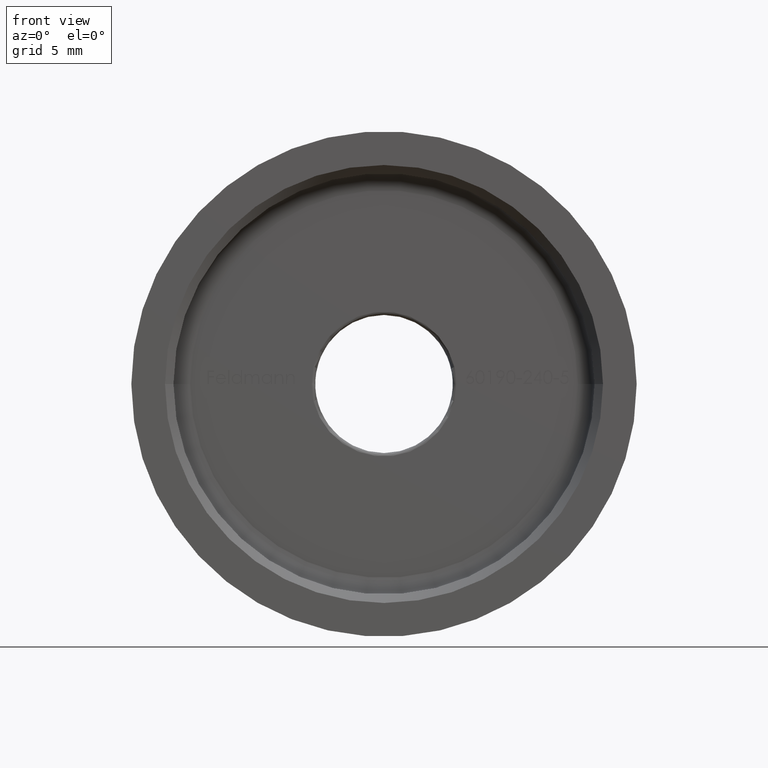
[diagram: clean part render]
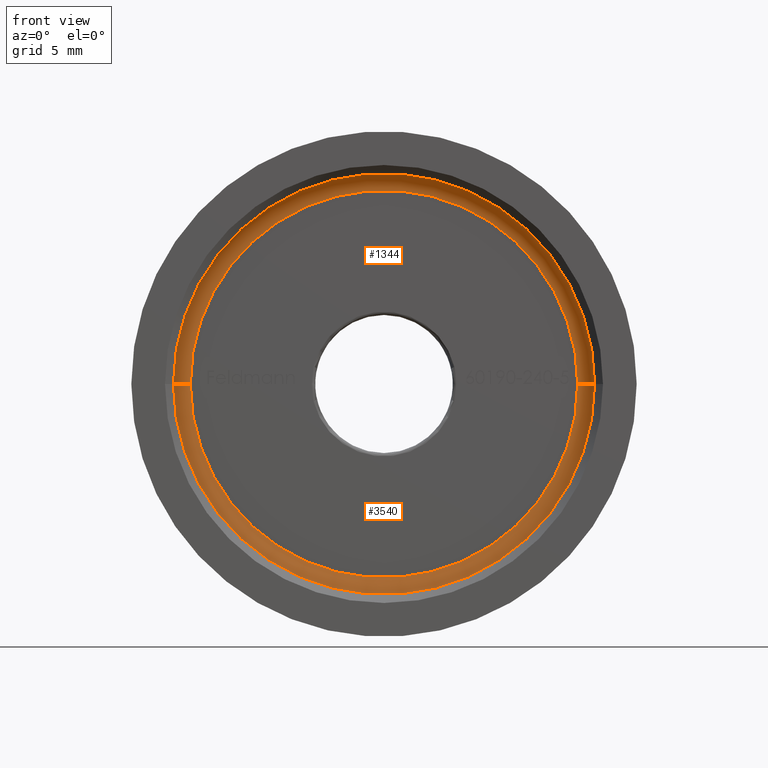
[diagram: same view with one multi-face feature highlighted, each face labeled with its STEP entity id]
A machine part, front view. The highlighted faces form ONE feature: a constant-radius fillet chain: 2 tangent blend faces with common blend radius 1 mm. The faces share edges in the B-rep.
Their STEP definitions:
[1] entity #3540 (Torus):
#455 = CARTESIAN_POINT ( 'NONE',  ( -7.347880794884115792E-16, 2.999999999999998224, 0.000000000000000000 ) ) ;
#506 = AXIS2_PLACEMENT_3D ( 'NONE', #7129, #7082, #9353 ) ;
#760 = CARTESIAN_POINT ( 'NONE',  ( 12.50000000000000000, 2.000000000000000444, 0.000000000000000000 ) ) ;
#1505 = CARTESIAN_POINT ( 'NONE',  ( -5.463808796195879557E-16, 1.999999999999998224, 0.000000000000000000 ) ) ;
#1604 = CIRCLE ( 'NONE', #9177, 1.000000000000000888 ) ;
#2251 = ORIENTED_EDGE ( 'NONE', *, *, #4138, .F. ) ;
#3540 = ADVANCED_FACE ( 'NONE', ( #12946 ), #4214, .F. ) ;
#3914 = CARTESIAN_POINT ( 'NONE',  ( -11.50000000000000000, 2.999999999999996003, 1.469576158976823947E-15 ) ) ;
#4138 = EDGE_CURVE ( 'NONE', #6949, #5672, #13970, .T. ) ;
#4214 = TOROIDAL_SURFACE ( 'NONE', #12784, 11.50000000000000000, 1.000000000000000000 ) ;
#5495 = AXIS2_PLACEMENT_3D ( 'NONE', #455, #8081, #6835 ) ;
#5672 = VERTEX_POINT ( 'NONE', #13744 ) ;
#6835 = DIRECTION ( 'NONE',  ( 1.000000000000000000, 1.885568995626964287E-16, 0.000000000000000000 ) ) ;
#6949 = VERTEX_POINT ( 'NONE', #760 ) ;
#6982 = DIRECTION ( 'NONE',  ( -1.884071998688235002E-16, 1.000000000000000000, 0.000000000000000000 ) ) ;
#7071 = DIRECTION ( 'NONE',  ( 1.000000000000000000, 1.734723475976807094E-16, 0.000000000000000000 ) ) ;
#7082 = DIRECTION ( 'NONE',  ( 1.224646799147353207E-16, 2.307322742556703254E-32, 1.000000000000000000 ) ) ;
#7129 = CARTESIAN_POINT ( 'NONE',  ( -11.50000000000000000, 1.999999999999996225, 1.408343819019456176E-15 ) ) ;
#7291 = VERTEX_POINT ( 'NONE', #13786 ) ;
#7426 = DIRECTION ( 'NONE',  ( 1.884071998688235002E-16, -1.000000000000000000, -0.000000000000000000 ) ) ;
#7824 = EDGE_LOOP ( 'NONE', ( #12097, #10420, #2251, #10780 ) ) ;
#8081 = DIRECTION ( 'NONE',  ( 1.884071998688235002E-16, -1.000000000000000000, -0.000000000000000000 ) ) ;
#8390 = EDGE_CURVE ( 'NONE', #10369, #7291, #9646, .T. ) ;
#8474 = CARTESIAN_POINT ( 'NONE',  ( -5.463808796195879557E-16, 1.999999999999998224, 0.000000000000000000 ) ) ;
#8627 = CARTESIAN_POINT ( 'NONE',  ( 11.50000000000000000, 2.000000000000000444, 0.000000000000000000 ) ) ;
#9177 = AXIS2_PLACEMENT_3D ( 'NONE', #8627, #12977, #14127 ) ;
#9353 = DIRECTION ( 'NONE',  ( 1.000000000000000000, 0.000000000000000000, -1.224646799147351482E-16 ) ) ;
#9362 = EDGE_CURVE ( 'NONE', #7291, #6949, #1604, .T. ) ;
#9646 = CIRCLE ( 'NONE', #5495, 11.50000000000000000 ) ;
#10046 = EDGE_CURVE ( 'NONE', #10369, #5672, #13021, .T. ) ;
#10369 = VERTEX_POINT ( 'NONE', #3914 ) ;
#10420 = ORIENTED_EDGE ( 'NONE', *, *, #10046, .T. ) ;
#10780 = ORIENTED_EDGE ( 'NONE', *, *, #9362, .F. ) ;
#12097 = ORIENTED_EDGE ( 'NONE', *, *, #8390, .F. ) ;
#12784 = AXIS2_PLACEMENT_3D ( 'NONE', #8474, #7426, #13896 ) ;
#12946 = FACE_OUTER_BOUND ( 'NONE', #7824, .T. ) ;
#12977 = DIRECTION ( 'NONE',  ( 0.000000000000000000, 0.000000000000000000, -1.000000000000000000 ) ) ;
#13021 = CIRCLE ( 'NONE', #506, 1.000000000000000888 ) ;
#13744 = CARTESIAN_POINT ( 'NONE',  ( -12.50000000000000000, 1.999999999999996225, 1.530808498934191521E-15 ) ) ;
#13786 = CARTESIAN_POINT ( 'NONE',  ( 11.50000000000000000, 3.000000000000000444, 0.000000000000000000 ) ) ;
#13896 = DIRECTION ( 'NONE',  ( 1.000000000000000000, 1.884071998688235002E-16, 0.000000000000000000 ) ) ;
#13970 = CIRCLE ( 'NONE', #13971, 12.50000000000000000 ) ;
#13971 = AXIS2_PLACEMENT_3D ( 'NONE', #1505, #6982, #7071 ) ;
#14127 = DIRECTION ( 'NONE',  ( -1.000000000000000000, 0.000000000000000000, 0.000000000000000000 ) ) ;
[2] entity #1344 (Torus):
#506 = AXIS2_PLACEMENT_3D ( 'NONE', #7129, #7082, #9353 ) ;
#658 = EDGE_CURVE ( 'NONE', #5672, #6949, #3628, .T. ) ;
#760 = CARTESIAN_POINT ( 'NONE',  ( 12.50000000000000000, 2.000000000000000444, 0.000000000000000000 ) ) ;
#863 = AXIS2_PLACEMENT_3D ( 'NONE', #2190, #3227, #10933 ) ;
#1344 = ADVANCED_FACE ( 'NONE', ( #9035 ), #8687, .F. ) ;
#1604 = CIRCLE ( 'NONE', #9177, 1.000000000000000888 ) ;
#1670 = EDGE_LOOP ( 'NONE', ( #13526, #10525, #4011, #13255 ) ) ;
#2190 = CARTESIAN_POINT ( 'NONE',  ( -7.347880794884115792E-16, 2.999999999999998224, 0.000000000000000000 ) ) ;
#2395 = CIRCLE ( 'NONE', #863, 11.50000000000000000 ) ;
#3227 = DIRECTION ( 'NONE',  ( 1.884071998688235002E-16, -1.000000000000000000, -0.000000000000000000 ) ) ;
#3628 = CIRCLE ( 'NONE', #11944, 12.50000000000000000 ) ;
#3914 = CARTESIAN_POINT ( 'NONE',  ( -11.50000000000000000, 2.999999999999996003, 1.469576158976823947E-15 ) ) ;
#4011 = ORIENTED_EDGE ( 'NONE', *, *, #9362, .T. ) ;
#5071 = AXIS2_PLACEMENT_3D ( 'NONE', #8300, #7482, #10828 ) ;
#5672 = VERTEX_POINT ( 'NONE', #13744 ) ;
#6949 = VERTEX_POINT ( 'NONE', #760 ) ;
#7082 = DIRECTION ( 'NONE',  ( 1.224646799147353207E-16, 2.307322742556703254E-32, 1.000000000000000000 ) ) ;
#7129 = CARTESIAN_POINT ( 'NONE',  ( -11.50000000000000000, 1.999999999999996225, 1.408343819019456176E-15 ) ) ;
#7291 = VERTEX_POINT ( 'NONE', #13786 ) ;
#7451 = DIRECTION ( 'NONE',  ( -1.884071998688235002E-16, 1.000000000000000000, 0.000000000000000000 ) ) ;
#7482 = DIRECTION ( 'NONE',  ( 1.884071998688235002E-16, -1.000000000000000000, -0.000000000000000000 ) ) ;
#8300 = CARTESIAN_POINT ( 'NONE',  ( -5.463808796195879557E-16, 1.999999999999998224, 0.000000000000000000 ) ) ;
#8627 = CARTESIAN_POINT ( 'NONE',  ( 11.50000000000000000, 2.000000000000000444, 0.000000000000000000 ) ) ;
#8687 = TOROIDAL_SURFACE ( 'NONE', #5071, 11.50000000000000000, 1.000000000000000000 ) ;
#9035 = FACE_OUTER_BOUND ( 'NONE', #1670, .T. ) ;
#9177 = AXIS2_PLACEMENT_3D ( 'NONE', #8627, #12977, #14127 ) ;
#9353 = DIRECTION ( 'NONE',  ( 1.000000000000000000, 0.000000000000000000, -1.224646799147351482E-16 ) ) ;
#9362 = EDGE_CURVE ( 'NONE', #7291, #6949, #1604, .T. ) ;
#10046 = EDGE_CURVE ( 'NONE', #10369, #5672, #13021, .T. ) ;
#10369 = VERTEX_POINT ( 'NONE', #3914 ) ;
#10525 = ORIENTED_EDGE ( 'NONE', *, *, #13441, .F. ) ;
#10828 = DIRECTION ( 'NONE',  ( 1.000000000000000000, 1.884071998688235002E-16, 0.000000000000000000 ) ) ;
#10933 = DIRECTION ( 'NONE',  ( 1.000000000000000000, 1.885568995626964287E-16, 0.000000000000000000 ) ) ;
#11944 = AXIS2_PLACEMENT_3D ( 'NONE', #14008, #7451, #11957 ) ;
#11957 = DIRECTION ( 'NONE',  ( 1.000000000000000000, 1.734723475976807094E-16, 0.000000000000000000 ) ) ;
#12977 = DIRECTION ( 'NONE',  ( 0.000000000000000000, 0.000000000000000000, -1.000000000000000000 ) ) ;
#13021 = CIRCLE ( 'NONE', #506, 1.000000000000000888 ) ;
#13255 = ORIENTED_EDGE ( 'NONE', *, *, #658, .F. ) ;
#13441 = EDGE_CURVE ( 'NONE', #7291, #10369, #2395, .T. ) ;
#13526 = ORIENTED_EDGE ( 'NONE', *, *, #10046, .F. ) ;
#13744 = CARTESIAN_POINT ( 'NONE',  ( -12.50000000000000000, 1.999999999999996225, 1.530808498934191521E-15 ) ) ;
#13786 = CARTESIAN_POINT ( 'NONE',  ( 11.50000000000000000, 3.000000000000000444, 0.000000000000000000 ) ) ;
#14008 = CARTESIAN_POINT ( 'NONE',  ( -5.463808796195879557E-16, 1.999999999999998224, 0.000000000000000000 ) ) ;
#14127 = DIRECTION ( 'NONE',  ( -1.000000000000000000, 0.000000000000000000, 0.000000000000000000 ) ) ;